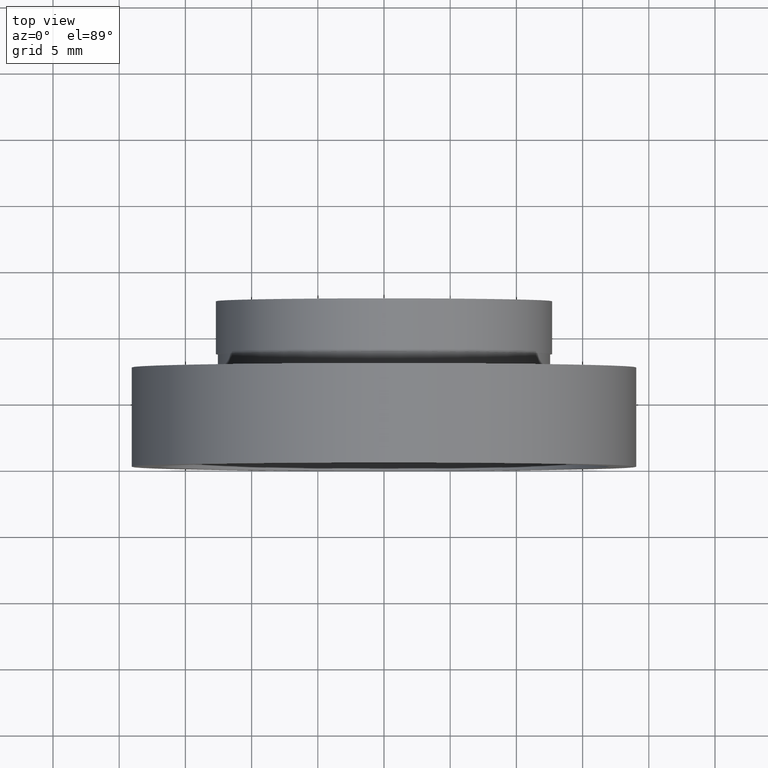
[diagram: clean part render]
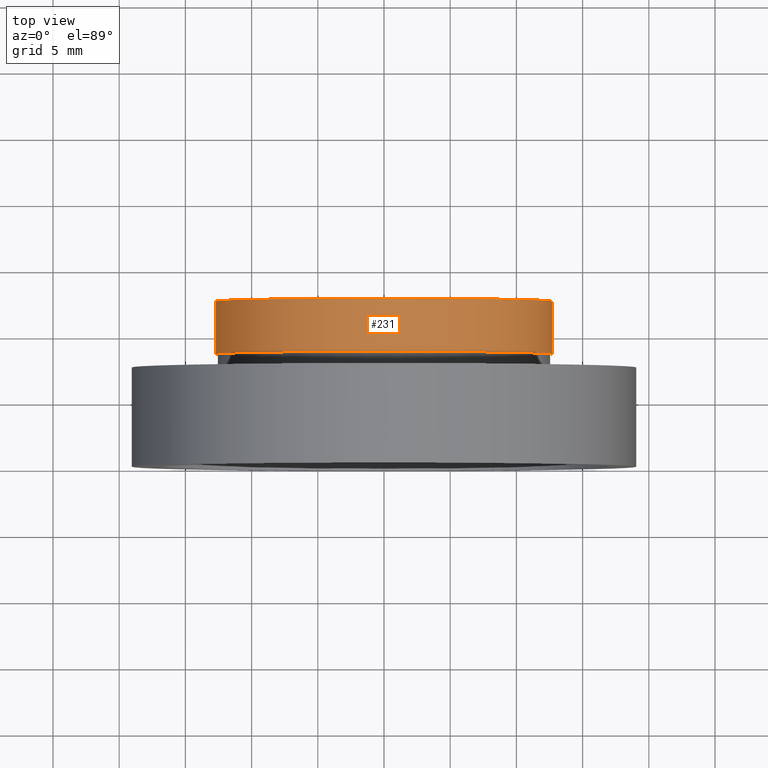
[diagram: same view with one face highlighted and labeled with its STEP entity id]
A machine part, top view. The second image highlights one B-rep face of the part: STEP entity #231.
In plain terms, the highlighted cylindrical surface (partial cylindrical patch) has radius 12.7 mm, axis along (-0, 1, -0).
Its self-contained STEP definition (entity closure, byte-faithful):
#8 = VERTEX_POINT ( 'NONE', #495 ) ;
#19 = EDGE_LOOP ( 'NONE', ( #47, #71, #171, #505 ) ) ;
#40 = DIRECTION ( 'NONE',  ( -1.224646799147351000E-016, 1.000000000000000000, -0.0000000000000000000 ) ) ;
#47 = ORIENTED_EDGE ( 'NONE', *, *, #308, .T. ) ;
#51 = DIRECTION ( 'NONE',  ( -1.000000000000000000, -1.365923996832131600E-016, 0.0000000000000000000 ) ) ;
#57 = VERTEX_POINT ( 'NONE', #82 ) ;
#58 = VECTOR ( 'NONE', #421, 1000.000000000000000 ) ;
#71 = ORIENTED_EDGE ( 'NONE', *, *, #562, .T. ) ;
#82 = CARTESIAN_POINT ( 'NONE',  ( -12.69999999999999600, 8.499999999999996400, 0.0000000000000000000 ) ) ;
#85 = CARTESIAN_POINT ( 'NONE',  ( -12.69999999999999900, 16.88601823708207700, 0.0000000000000000000 ) ) ;
#86 = DIRECTION ( 'NONE',  ( -1.224646799147351000E-016, 1.000000000000000000, -0.0000000000000000000 ) ) ;
#109 = CARTESIAN_POINT ( 'NONE',  ( 5.371323195044474300E-016, 12.49999999999999600, 0.0000000000000000000 ) ) ;
#171 = ORIENTED_EDGE ( 'NONE', *, *, #476, .F. ) ;
#182 = AXIS2_PLACEMENT_3D ( 'NONE', #381, #388, #219 ) ;
#188 = CARTESIAN_POINT ( 'NONE',  ( 0.0000000000000000000, 16.88601823708207700, 0.0000000000000000000 ) ) ;
#218 = DIRECTION ( 'NONE',  ( -1.224646799147351000E-016, 1.000000000000000000, -0.0000000000000000000 ) ) ;
#219 = DIRECTION ( 'NONE',  ( -1.000000000000000000, -1.365923996832131900E-016, 0.0000000000000000000 ) ) ;
#225 = VERTEX_POINT ( 'NONE', #367 ) ;
#231 = ADVANCED_FACE ( 'NONE', ( #607 ), #564, .T. ) ;
#235 = VECTOR ( 'NONE', #40, 1000.000000000000000 ) ;
#276 = CARTESIAN_POINT ( 'NONE',  ( 12.69999999999999900, 16.88601823708207700, 1.555301434917138400E-015 ) ) ;
#297 = CIRCLE ( 'NONE', #182, 12.69999999999999800 ) ;
#308 = EDGE_CURVE ( 'NONE', #57, #8, #297, .T. ) ;
#326 = CIRCLE ( 'NONE', #378, 12.69999999999999900 ) ;
#367 = CARTESIAN_POINT ( 'NONE',  ( -12.69999999999999900, 12.49999999999999500, 0.0000000000000000000 ) ) ;
#378 = AXIS2_PLACEMENT_3D ( 'NONE', #109, #86, #51 ) ;
#381 = CARTESIAN_POINT ( 'NONE',  ( 1.026991039163387700E-015, 8.499999999999998200, 0.0000000000000000000 ) ) ;
#388 = DIRECTION ( 'NONE',  ( -1.224646799147351000E-016, 1.000000000000000000, -0.0000000000000000000 ) ) ;
#419 = AXIS2_PLACEMENT_3D ( 'NONE', #188, #218, #587 ) ;
#421 = DIRECTION ( 'NONE',  ( -1.224646799147351000E-016, 1.000000000000000000, -0.0000000000000000000 ) ) ;
#426 = CARTESIAN_POINT ( 'NONE',  ( 12.69999999999999900, 12.49999999999999800, 1.555301434917138400E-015 ) ) ;
#429 = LINE ( 'NONE', #85, #58 ) ;
#445 = VERTEX_POINT ( 'NONE', #426 ) ;
#476 = EDGE_CURVE ( 'NONE', #225, #445, #326, .T. ) ;
#495 = CARTESIAN_POINT ( 'NONE',  ( 12.69999999999999900, 8.500000000000000000, 1.555301434917138400E-015 ) ) ;
#505 = ORIENTED_EDGE ( 'NONE', *, *, #542, .F. ) ;
#538 = LINE ( 'NONE', #276, #235 ) ;
#542 = EDGE_CURVE ( 'NONE', #57, #225, #429, .T. ) ;
#562 = EDGE_CURVE ( 'NONE', #8, #445, #538, .T. ) ;
#564 = CYLINDRICAL_SURFACE ( 'NONE', #419, 12.69999999999999900 ) ;
#587 = DIRECTION ( 'NONE',  ( -1.000000000000000000, 0.0000000000000000000, 0.0000000000000000000 ) ) ;
#607 = FACE_OUTER_BOUND ( 'NONE', #19, .T. ) ;